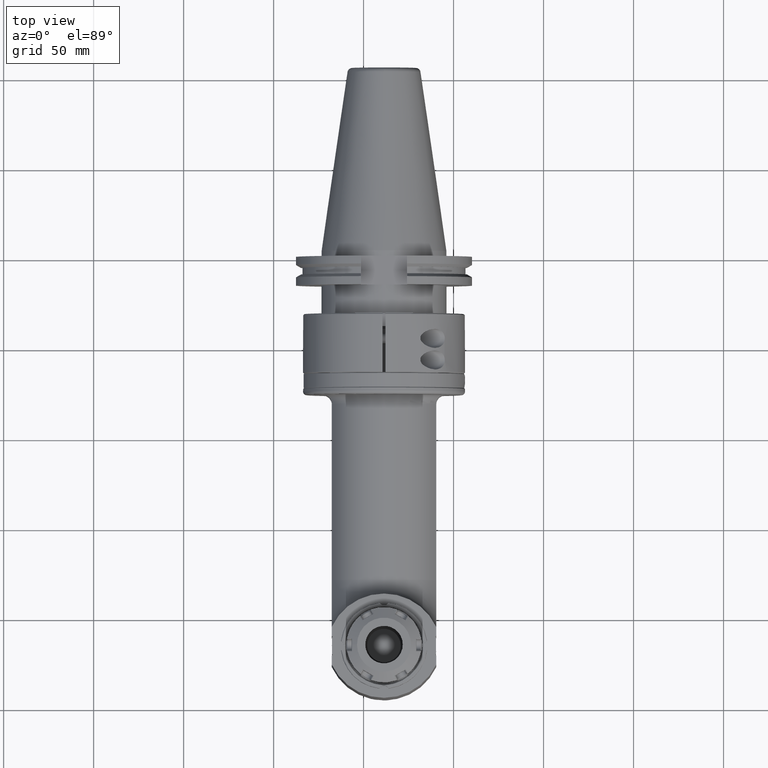
[diagram: clean part render]
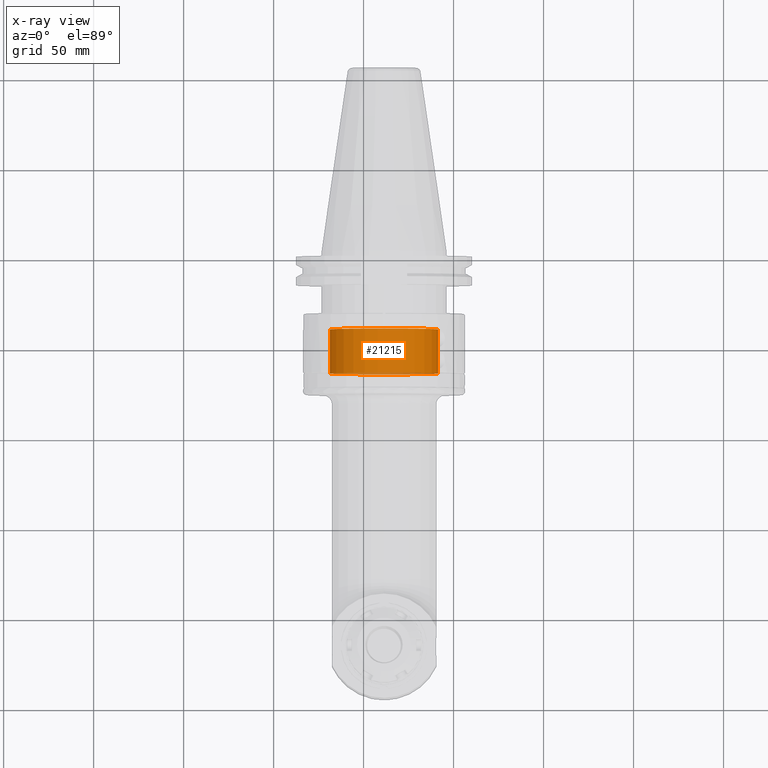
[diagram: x-ray — body ghosted, one internal face saturated and labeled with its STEP entity id]
A machine part, top view, then the same camera in x-ray: the body is ghosted and one INTERNAL B-rep face — a face not visible from any outside direction — is saturated and labeled: STEP entity #21215.
In plain terms, the highlighted cylindrical surface (bore or boss wall) has radius 30 mm, axis along (0, -1, -0).
Its self-contained STEP definition (entity closure, byte-faithful):
#1642=FACE_OUTER_BOUND('',#2906,.T.);
#2906=EDGE_LOOP('',(#15442,#15443,#15444,#15445));
#4263=CIRCLE('',#22631,1.18110236220472);
#4273=CIRCLE('',#22645,1.18110236220472);
#5264=LINE('',#32686,#7387);
#7387=VECTOR('',#25350,1.18110236220472);
#9538=VERTEX_POINT('',#32657);
#9549=VERTEX_POINT('',#32685);
#11799=EDGE_CURVE('',#9538,#9538,#4263,.T.);
#11812=EDGE_CURVE('',#9538,#9549,#5264,.T.);
#11813=EDGE_CURVE('',#9549,#9549,#4273,.T.);
#15442=ORIENTED_EDGE('',*,*,#11799,.T.);
#15443=ORIENTED_EDGE('',*,*,#11812,.T.);
#15444=ORIENTED_EDGE('',*,*,#11813,.T.);
#15445=ORIENTED_EDGE('',*,*,#11812,.F.);
#20871=CYLINDRICAL_SURFACE('',#22644,1.18110236220472);
#21215=ADVANCED_FACE('',(#1642),#20871,.T.);
#22631=AXIS2_PLACEMENT_3D('',#32658,#25319,#25320);
#22644=AXIS2_PLACEMENT_3D('',#32684,#25348,#25349);
#22645=AXIS2_PLACEMENT_3D('',#32687,#25351,#25352);
#25319=DIRECTION('center_axis',(0.,1.,0.));
#25320=DIRECTION('ref_axis',(1.,0.,0.));
#25348=DIRECTION('center_axis',(0.,-1.,0.));
#25349=DIRECTION('ref_axis',(-1.,0.,0.));
#25350=DIRECTION('',(0.,1.,0.));
#25351=DIRECTION('center_axis',(0.,-1.,0.));
#25352=DIRECTION('ref_axis',(1.,0.,0.));
#32657=CARTESIAN_POINT('',(1.18110236220472,-0.984251968503937,1.44643322733939E-16));
#32658=CARTESIAN_POINT('Origin',(0.,-0.984251968503937,0.));
#32684=CARTESIAN_POINT('Origin',(0.,0.348425196850394,0.));
#32685=CARTESIAN_POINT('',(1.18110236220472,-0.0196850393700788,1.44643322733939E-16));
#32686=CARTESIAN_POINT('',(1.18110236220472,0.348425196850394,1.44643322733939E-16));
#32687=CARTESIAN_POINT('Origin',(0.,-0.0196850393700787,0.));